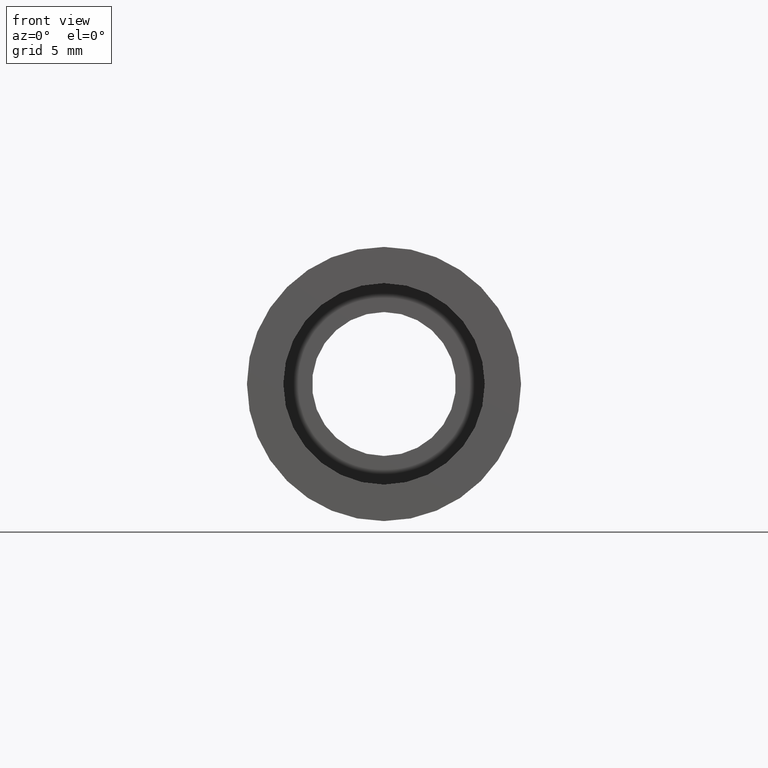
[diagram: clean part render]
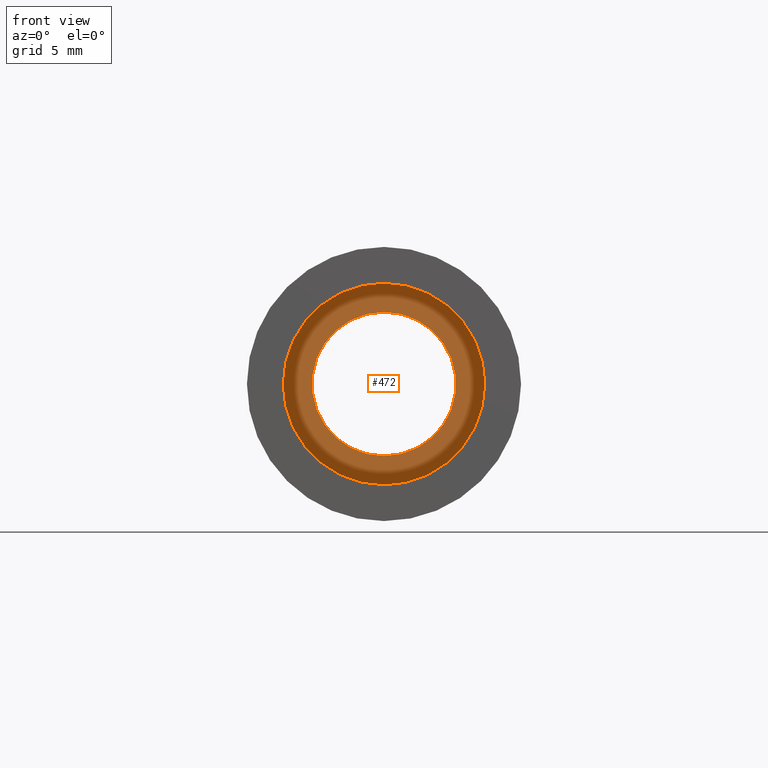
[diagram: same view with one face highlighted and labeled with its STEP entity id]
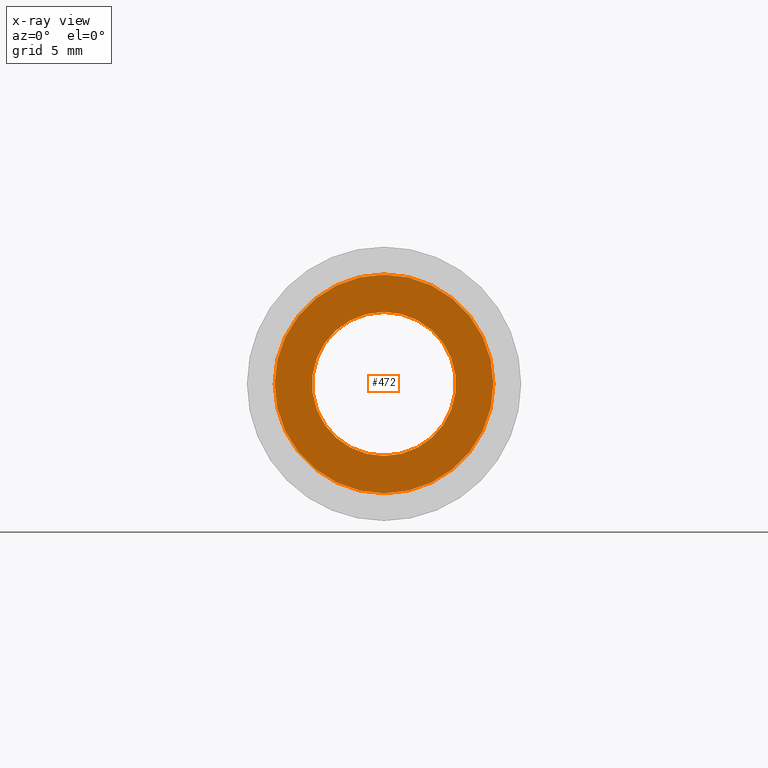
[diagram: x-ray of the same camera — body ghosted, the highlighted face saturated]
A machine part, front view. The second image highlights one B-rep face of the part: STEP entity #472.
The next image is the same camera in x-ray: the body ghosted, the highlighted face saturated — about 0% of this face is hidden behind the body in this view.
In plain terms, the highlighted planar face has unit normal (-0, 1, 0).
Its self-contained STEP definition (entity closure, byte-faithful):
#9 = DIRECTION ( 'NONE',  ( 0.0000000000000000000, 0.0000000000000000000, 1.000000000000000000 ) ) ;
#28 = CARTESIAN_POINT ( 'NONE',  ( 0.0000000000000000000, 5.499999999999976900, 0.0000000000000000000 ) ) ;
#30 = EDGE_CURVE ( 'NONE', #151, #348, #451, .T. ) ;
#33 = ORIENTED_EDGE ( 'NONE', *, *, #30, .F. ) ;
#41 = CARTESIAN_POINT ( 'NONE',  ( 0.0000000000000000000, 5.499999999999976900, 0.0000000000000000000 ) ) ;
#70 = VERTEX_POINT ( 'NONE', #158 ) ;
#76 = CARTESIAN_POINT ( 'NONE',  ( 0.0000000000000000000, 5.499999999999976900, 7.600000000000020100 ) ) ;
#89 = ORIENTED_EDGE ( 'NONE', *, *, #261, .T. ) ;
#91 = ORIENTED_EDGE ( 'NONE', *, *, #325, .F. ) ;
#112 = EDGE_CURVE ( 'NONE', #590, #70, #185, .T. ) ;
#118 = CIRCLE ( 'NONE', #554, 5.000000000000019500 ) ;
#121 = CARTESIAN_POINT ( 'NONE',  ( 7.600000000000020100, 5.499999999999984000, 0.0000000000000000000 ) ) ;
#126 = DIRECTION ( 'NONE',  ( 0.0000000000000000000, 0.0000000000000000000, 1.000000000000000000 ) ) ;
#127 = DIRECTION ( 'NONE',  ( 0.0000000000000000000, 0.0000000000000000000, 1.000000000000000000 ) ) ;
#130 = ORIENTED_EDGE ( 'NONE', *, *, #112, .T. ) ;
#151 = VERTEX_POINT ( 'NONE', #76 ) ;
#158 = CARTESIAN_POINT ( 'NONE',  ( 6.123233995736789000E-016, 5.499999999999976900, -5.000000000000019500 ) ) ;
#185 = CIRCLE ( 'NONE', #467, 5.000000000000019500 ) ;
#207 = DIRECTION ( 'NONE',  ( 0.0000000000000000000, 0.0000000000000000000, 1.000000000000000000 ) ) ;
#225 = PLANE ( 'NONE',  #482 ) ;
#227 = CARTESIAN_POINT ( 'NONE',  ( 0.0000000000000000000, 5.499999999999976900, 0.0000000000000000000 ) ) ;
#247 = FACE_BOUND ( 'NONE', #599, .T. ) ;
#261 = EDGE_CURVE ( 'NONE', #70, #590, #118, .T. ) ;
#309 = DIRECTION ( 'NONE',  ( 0.0000000000000000000, 0.0000000000000000000, 1.000000000000000000 ) ) ;
#310 = AXIS2_PLACEMENT_3D ( 'NONE', #28, #499, #207 ) ;
#325 = EDGE_CURVE ( 'NONE', #348, #151, #594, .T. ) ;
#348 = VERTEX_POINT ( 'NONE', #583 ) ;
#367 = DIRECTION ( 'NONE',  ( -0.0000000000000000000, 1.000000000000000000, -0.0000000000000000000 ) ) ;
#375 = DIRECTION ( 'NONE',  ( -0.0000000000000000000, 1.000000000000000000, 0.0000000000000000000 ) ) ;
#383 = DIRECTION ( 'NONE',  ( -0.0000000000000000000, 1.000000000000000000, -0.0000000000000000000 ) ) ;
#425 = AXIS2_PLACEMENT_3D ( 'NONE', #481, #383, #9 ) ;
#451 = CIRCLE ( 'NONE', #310, 7.600000000000020100 ) ;
#457 = DIRECTION ( 'NONE',  ( -0.0000000000000000000, 1.000000000000000000, -0.0000000000000000000 ) ) ;
#466 = EDGE_LOOP ( 'NONE', ( #33, #91 ) ) ;
#467 = AXIS2_PLACEMENT_3D ( 'NONE', #227, #457, #309 ) ;
#472 = ADVANCED_FACE ( 'NONE', ( #483, #247 ), #225, .F. ) ;
#481 = CARTESIAN_POINT ( 'NONE',  ( 0.0000000000000000000, 5.499999999999976900, 0.0000000000000000000 ) ) ;
#482 = AXIS2_PLACEMENT_3D ( 'NONE', #121, #375, #126 ) ;
#483 = FACE_OUTER_BOUND ( 'NONE', #466, .T. ) ;
#499 = DIRECTION ( 'NONE',  ( -0.0000000000000000000, 1.000000000000000000, -0.0000000000000000000 ) ) ;
#554 = AXIS2_PLACEMENT_3D ( 'NONE', #41, #367, #127 ) ;
#583 = CARTESIAN_POINT ( 'NONE',  ( 9.307315673519909100E-016, 5.499999999999976900, -7.600000000000020100 ) ) ;
#590 = VERTEX_POINT ( 'NONE', #615 ) ;
#594 = CIRCLE ( 'NONE', #425, 7.600000000000020100 ) ;
#599 = EDGE_LOOP ( 'NONE', ( #130, #89 ) ) ;
#615 = CARTESIAN_POINT ( 'NONE',  ( 0.0000000000000000000, 5.499999999999976900, 5.000000000000019500 ) ) ;